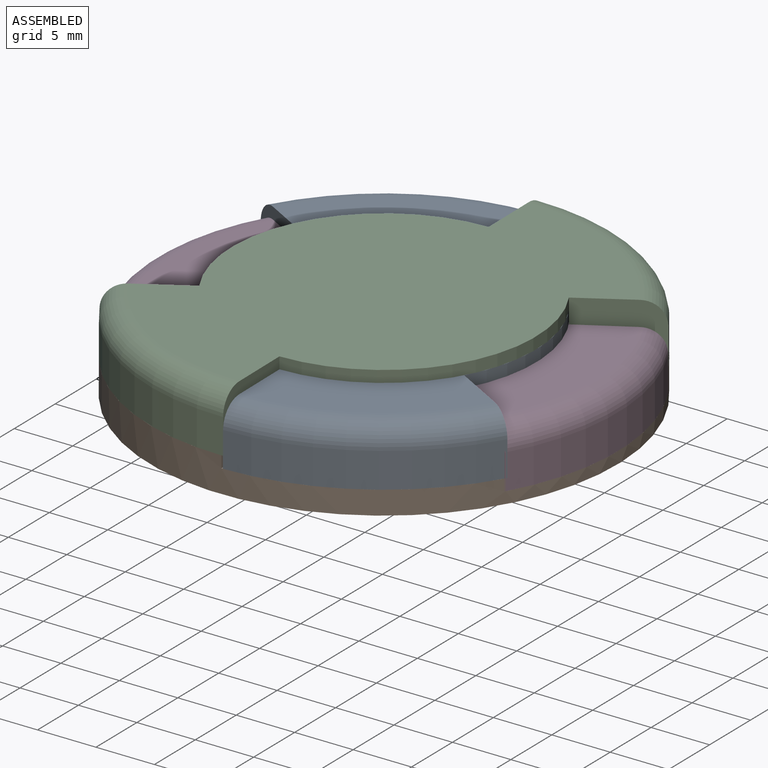
[diagram: assembled view]
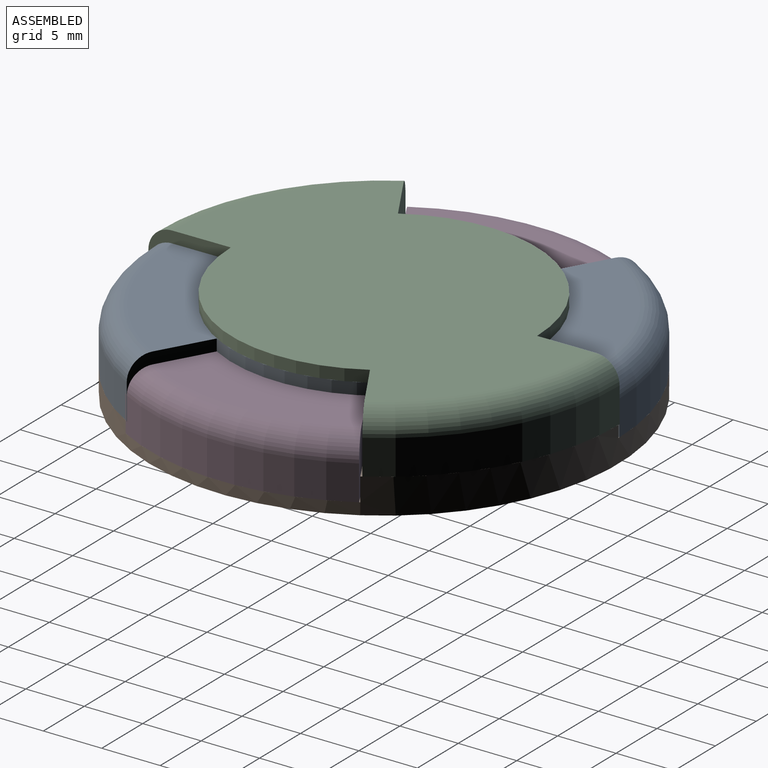
[diagram: assembled view, second angle]
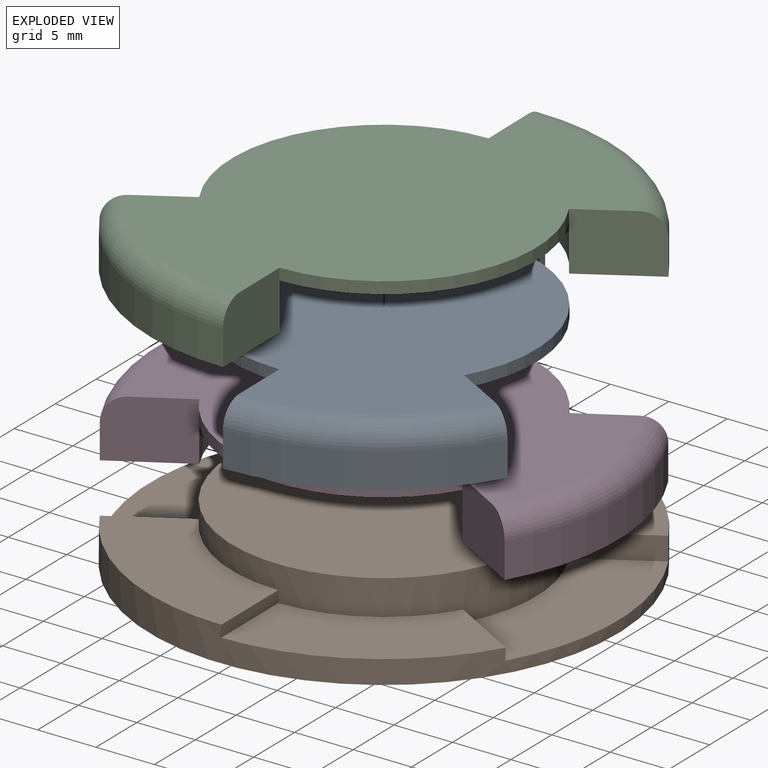
[diagram: exploded view]
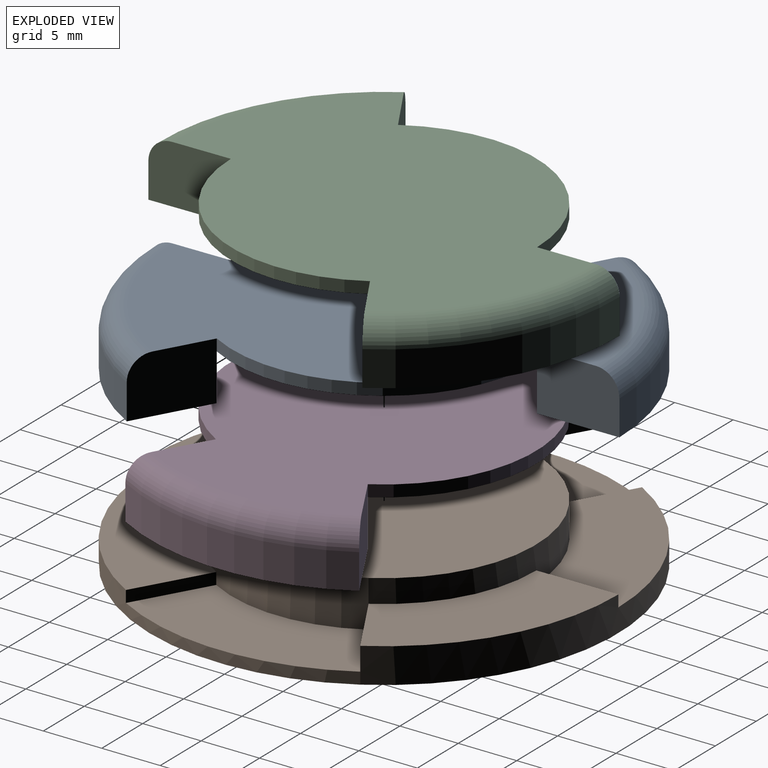
[diagram: exploded view, second angle]
ASSEMBLY  parts=4 mates=3
PART A: 16 faces, bbox 43.3x26x5 mm
  f0: plane 26x26mm, normal (0,0,-1), area 530.9mm2, adj f2,f6,f10,f12
  f1: plane 6.06x5mm, normal (-0.5,0.87,0), area 34.1mm2, adj f2,f8,f9,f12,f13,f15
  f2: cylinder r=13mm len=22.52mm, axis (0,0,-1), area 27.2mm2, adj f0,f1,f3,f9
  f3: plane 6.06x5mm, normal (0.5,0.87,0), area 34.1mm2, adj f2,f4,f9,f10,f11,f14
  f4: cylinder r=20mm len=20mm, axis (0,0,-1), area 62.8mm2, adj f3,f5,f11,f14
  f5: plane 6.06x5mm, normal (0.5,-0.87,0), area 34.1mm2, adj f4,f6,f9,f10,f11,f14
  f6: cylinder r=13mm len=22.52mm, axis (0,0,-1), area 27.2mm2, adj f0,f5,f7,f9
  f7: plane 6.06x5mm, normal (-0.5,-0.87,0), area 34.1mm2, adj f6,f8,f9,f12,f13,f15
  f8: cylinder r=20mm len=20mm, axis (0,0,-1), area 62.8mm2, adj f1,f7,f13,f15
  f9: plane 36x26mm, normal (0,0,1), area 693.2mm2, adj f1,f2,f3,f5,f6,f7,f14,f15
  f10: cylinder r=13mm len=13mm, axis (0,0,1), area 54.5mm2, adj f0,f3,f5,f11
  f11: plane 20x8.74mm, normal (0,0,-1), area 121mm2, adj f3,f4,f5,f10
  f12: cylinder r=13mm len=13mm, axis (0,0,1), area 54.5mm2, adj f0,f1,f7,f13
  f13: plane 20x8.74mm, normal (0,0,-1), area 121mm2, adj f1,f7,f8,f12
  f14: torus R=18mm, axis (0,0,1), area 63.4mm2, adj f3,f4,f5,f9
  f15: torus R=18mm, axis (0,0,1), area 63.4mm2, adj f1,f7,f8,f9
PART B: 16 faces, bbox 40x40x5 mm
  f0: cylinder r=13mm len=26mm, axis (0,0,-1), area 245mm2, adj f1,f2,f5,f6,f7,f8,f9,f10
  f1: plane 20x8.74mm, normal (0,0,1), area 121mm2, adj f0,f3,f8,f11
  f2: plane 20x8.74mm, normal (0,0,1), area 121mm2, adj f0,f3,f6,f14
  f3: cylinder r=20mm len=40mm, axis (0,0,-1), area 251.3mm2, adj f1,f2,f4,f6,f7,f8,f9,f10
  f4: plane 40x40mm, normal (0,0,-1), area 1256.6mm2, adj f3
  f5: plane 26x26mm, normal (0,0,1), area 530.9mm2, adj f0
  f6: plane 6.06x3.5mm, normal (-0.5,-0.87,0), area 7mm2, adj f0,f2,f3,f7
  f7: plane 17.32x13.5mm, normal (0,0,1), area 121mm2, adj f0,f3,f6,f10
  f8: plane 6.06x3.5mm, normal (0.5,0.87,0), area 7mm2, adj f0,f1,f3,f9
  f9: plane 17.32x13.5mm, normal (0,0,1), area 121mm2, adj f0,f3,f8,f13
  f10: plane 7x1mm, normal (-1,0,0), area 7mm2, adj f0,f3,f7,f12
  f11: plane 6.06x3.5mm, normal (0.5,-0.87,0), area 14mm2, adj f0,f1,f3,f12
  f12: plane 17.32x13.5mm, normal (0,0,1), area 121mm2, adj f0,f3,f10,f11
  f13: plane 7x1mm, normal (1,0,0), area 7mm2, adj f0,f3,f9,f15
  f14: plane 6.06x3.5mm, normal (-0.5,0.87,0), area 14mm2, adj f0,f2,f3,f15
  f15: plane 17.32x13.5mm, normal (0,0,1), area 121mm2, adj f0,f3,f13,f14
PART C: same geometry as A
PART D: same geometry as A
PLACE A rot(axis=(0,0,1),120.6deg) t=(-29.73,-0.17,26.82)mm
PLACE B rot(axis=(0,0,-1),179.8deg) t=(-29.73,-0.17,20.82)mm
PLACE C rot(axis=(0,0,1),60.7deg) t=(-29.73,-0.17,27.82)mm
PLACE D t=(-29.73,-0.17,25.82)mm fixed
MATE revolute A.f10 <-> D.f8  axis (0,0,-1) through (-29.73,-0.17,26.82)mm
MATE revolute B.f0 <-> D.f2  axis (0,0,1) through (-29.73,-0.17,25.82)mm
MATE revolute C.f2 <-> A.f8  axis (0,0,-1) through (-29.73,-0.17,27.82)mm
